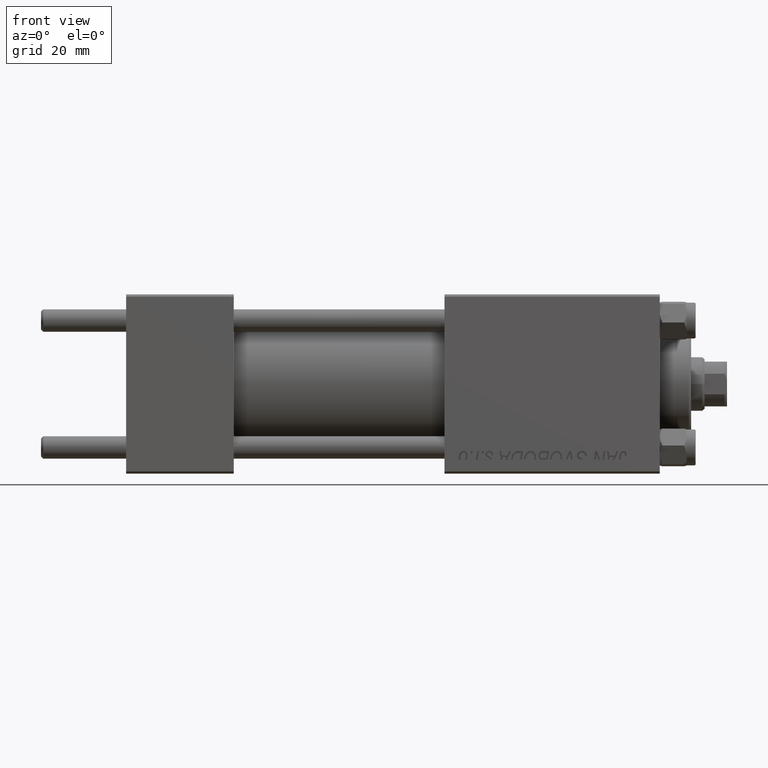
[diagram: clean part render]
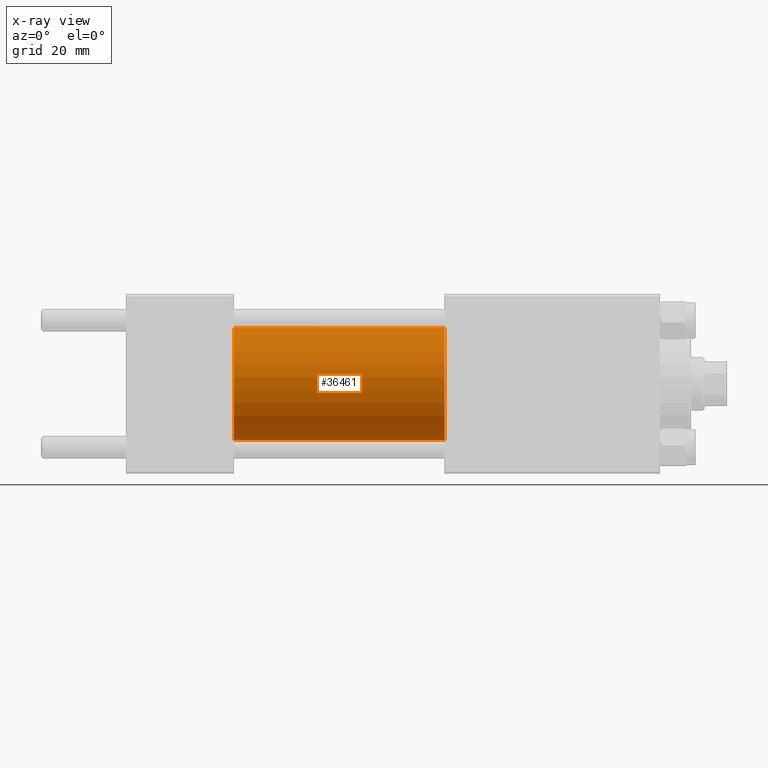
[diagram: x-ray — body ghosted, one internal face saturated and labeled with its STEP entity id]
A machine part, front view, then the same camera in x-ray: the body is ghosted and one INTERNAL B-rep face — a face not visible from any outside direction — is saturated and labeled: STEP entity #36461.
In plain terms, the highlighted cylindrical surface (partial cylindrical patch) has radius 12.5 mm, axis along (-1, -0, -0).
Its self-contained STEP definition (entity closure, byte-faithful):
#2536 = VECTOR ( 'NONE', #38398, 1000.000000000000000 ) ;
#2766 = FACE_OUTER_BOUND ( 'NONE', #21263, .T. ) ;
#3457 = VERTEX_POINT ( 'NONE', #8345 ) ;
#3983 = DIRECTION ( 'NONE',  ( 1.000000000000000000, 0.000000000000000000, 0.000000000000000000 ) ) ;
#5422 = CIRCLE ( 'NONE', #7050, 12.49999999999999645 ) ;
#5929 = EDGE_CURVE ( 'NONE', #3457, #37464, #42473, .T. ) ;
#6554 = VERTEX_POINT ( 'NONE', #33979 ) ;
#6703 = ORIENTED_EDGE ( 'NONE', *, *, #30969, .T. ) ;
#7050 = AXIS2_PLACEMENT_3D ( 'NONE', #37813, #26736, #18655 ) ;
#8345 = CARTESIAN_POINT ( 'NONE',  ( 24.00000000000000000, 0.000000000000000000, 12.49999999999999645 ) ) ;
#10670 = CARTESIAN_POINT ( 'NONE',  ( 71.00000000000001421, 0.000000000000000000, 12.49999999999999645 ) ) ;
#15117 = AXIS2_PLACEMENT_3D ( 'NONE', #38565, #3983, #34783 ) ;
#15716 = AXIS2_PLACEMENT_3D ( 'NONE', #22225, #44436, #45184 ) ;
#18651 = DIRECTION ( 'NONE',  ( -1.000000000000000000, -0.000000000000000000, -0.000000000000000000 ) ) ;
#18655 = DIRECTION ( 'NONE',  ( 0.000000000000000000, 0.000000000000000000, -1.000000000000000000 ) ) ;
#18922 = CARTESIAN_POINT ( 'NONE',  ( 71.00000000000001421, 0.000000000000000000, 12.49999999999999645 ) ) ;
#19100 = ORIENTED_EDGE ( 'NONE', *, *, #5929, .F. ) ;
#21263 = EDGE_LOOP ( 'NONE', ( #26848, #6703, #19100, #24346 ) ) ;
#22225 = CARTESIAN_POINT ( 'NONE',  ( 71.00000000000001421, 0.000000000000000000, 0.000000000000000000 ) ) ;
#24346 = ORIENTED_EDGE ( 'NONE', *, *, #25210, .F. ) ;
#25210 = EDGE_CURVE ( 'NONE', #25663, #3457, #46242, .T. ) ;
#25663 = VERTEX_POINT ( 'NONE', #18922 ) ;
#26736 = DIRECTION ( 'NONE',  ( 1.000000000000000000, 0.000000000000000000, 0.000000000000000000 ) ) ;
#26848 = ORIENTED_EDGE ( 'NONE', *, *, #38701, .T. ) ;
#29056 = CYLINDRICAL_SURFACE ( 'NONE', #15716, 12.49999999999999645 ) ;
#30969 = EDGE_CURVE ( 'NONE', #6554, #37464, #45638, .T. ) ;
#33840 = CARTESIAN_POINT ( 'NONE',  ( 24.00000000000000000, 1.530808498934191127E-15, -12.49999999999999645 ) ) ;
#33979 = CARTESIAN_POINT ( 'NONE',  ( 71.00000000000001421, 1.530808498934191127E-15, -12.49999999999999645 ) ) ;
#34028 = CARTESIAN_POINT ( 'NONE',  ( 71.00000000000001421, 1.530808498934191127E-15, -12.49999999999999645 ) ) ;
#34783 = DIRECTION ( 'NONE',  ( 0.000000000000000000, 0.000000000000000000, -1.000000000000000000 ) ) ;
#36461 = ADVANCED_FACE ( 'NONE', ( #2766 ), #29056, .F. ) ;
#37464 = VERTEX_POINT ( 'NONE', #33840 ) ;
#37813 = CARTESIAN_POINT ( 'NONE',  ( 71.00000000000001421, 0.000000000000000000, 0.000000000000000000 ) ) ;
#38398 = DIRECTION ( 'NONE',  ( -1.000000000000000000, -0.000000000000000000, -0.000000000000000000 ) ) ;
#38565 = CARTESIAN_POINT ( 'NONE',  ( 24.00000000000000000, 0.000000000000000000, 0.000000000000000000 ) ) ;
#38701 = EDGE_CURVE ( 'NONE', #25663, #6554, #5422, .T. ) ;
#42473 = CIRCLE ( 'NONE', #15117, 12.49999999999999645 ) ;
#44436 = DIRECTION ( 'NONE',  ( -1.000000000000000000, -0.000000000000000000, -0.000000000000000000 ) ) ;
#45184 = DIRECTION ( 'NONE',  ( 0.000000000000000000, 0.000000000000000000, 1.000000000000000000 ) ) ;
#45638 = LINE ( 'NONE', #34028, #46950 ) ;
#46242 = LINE ( 'NONE', #10670, #2536 ) ;
#46950 = VECTOR ( 'NONE', #18651, 1000.000000000000000 ) ;